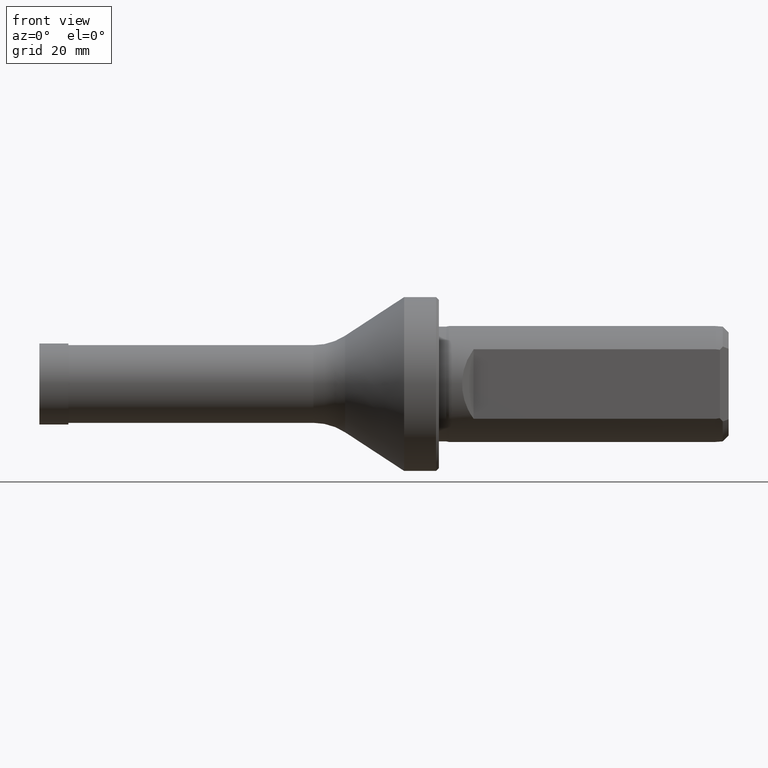
[diagram: clean part render]
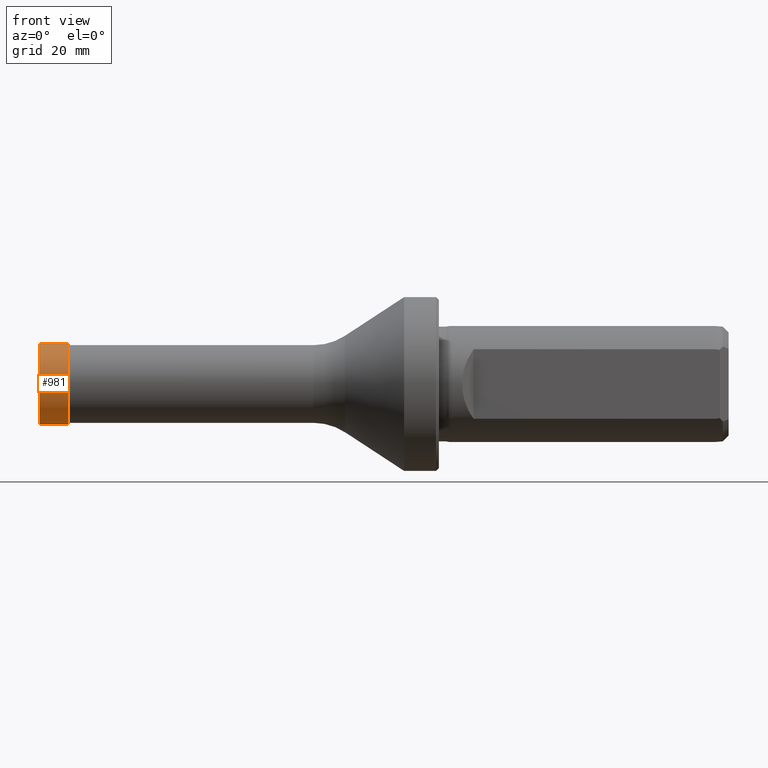
[diagram: same view with one face highlighted and labeled with its STEP entity id]
A machine part, front view. The second image highlights one B-rep face of the part: STEP entity #981.
In plain terms, the highlighted cylindrical surface (partial cylindrical patch) has radius 7 mm, axis along (-1, 0, 0).
Its self-contained STEP definition (entity closure, byte-faithful):
#28 = CARTESIAN_POINT ( 'NONE',  ( 4.500000000000000000, 8.572527594031473200E-016, -7.000000000000000000 ) ) ;
#67 = AXIS2_PLACEMENT_3D ( 'NONE', #385, #653, #226 ) ;
#72 = AXIS2_PLACEMENT_3D ( 'NONE', #327, #1011, #301 ) ;
#119 = DIRECTION ( 'NONE',  ( -1.000000000000000000, 0.0000000000000000000, 0.0000000000000000000 ) ) ;
#195 = AXIS2_PLACEMENT_3D ( 'NONE', #299, #278, #281 ) ;
#226 = DIRECTION ( 'NONE',  ( 0.0000000000000000000, 0.0000000000000000000, 1.000000000000000000 ) ) ;
#255 = VERTEX_POINT ( 'NONE', #962 ) ;
#278 = DIRECTION ( 'NONE',  ( -1.000000000000000000, 0.0000000000000000000, 0.0000000000000000000 ) ) ;
#281 = DIRECTION ( 'NONE',  ( 0.0000000000000000000, 0.0000000000000000000, 1.000000000000000000 ) ) ;
#299 = CARTESIAN_POINT ( 'NONE',  ( 4.500000000000000000, 0.0000000000000000000, 0.0000000000000000000 ) ) ;
#301 = DIRECTION ( 'NONE',  ( 0.0000000000000000000, 0.0000000000000000000, 1.000000000000000000 ) ) ;
#309 = ORIENTED_EDGE ( 'NONE', *, *, #796, .T. ) ;
#327 = CARTESIAN_POINT ( 'NONE',  ( -0.5000000000000001100, 0.0000000000000000000, 0.0000000000000000000 ) ) ;
#373 = CARTESIAN_POINT ( 'NONE',  ( -0.5000000000000001100, 8.572527594031473200E-016, -7.000000000000000000 ) ) ;
#374 = CARTESIAN_POINT ( 'NONE',  ( 4.500000000000000000, 0.0000000000000000000, 7.000000000000000000 ) ) ;
#385 = CARTESIAN_POINT ( 'NONE',  ( 4.500000000000000000, 0.0000000000000000000, 0.0000000000000000000 ) ) ;
#409 = DIRECTION ( 'NONE',  ( -1.000000000000000000, 0.0000000000000000000, 0.0000000000000000000 ) ) ;
#411 = VECTOR ( 'NONE', #409, 1000.000000000000000 ) ;
#415 = LINE ( 'NONE', #374, #411 ) ;
#485 = CYLINDRICAL_SURFACE ( 'NONE', #67, 7.000000000000000000 ) ;
#511 = FACE_OUTER_BOUND ( 'NONE', #519, .T. ) ;
#519 = EDGE_LOOP ( 'NONE', ( #1183, #309, #1031, #1161 ) ) ;
#552 = VERTEX_POINT ( 'NONE', #1006 ) ;
#641 = EDGE_CURVE ( 'NONE', #1105, #255, #896, .T. ) ;
#644 = EDGE_CURVE ( 'NONE', #691, #1105, #891, .T. ) ;
#653 = DIRECTION ( 'NONE',  ( -1.000000000000000000, 0.0000000000000000000, 0.0000000000000000000 ) ) ;
#691 = VERTEX_POINT ( 'NONE', #28 ) ;
#716 = CIRCLE ( 'NONE', #195, 7.000000000000000000 ) ;
#790 = CARTESIAN_POINT ( 'NONE',  ( 4.500000000000000000, 8.572527594031473200E-016, -7.000000000000000000 ) ) ;
#796 = EDGE_CURVE ( 'NONE', #691, #552, #716, .T. ) ;
#885 = VECTOR ( 'NONE', #119, 1000.000000000000000 ) ;
#891 = LINE ( 'NONE', #790, #885 ) ;
#896 = CIRCLE ( 'NONE', #72, 7.000000000000000000 ) ;
#962 = CARTESIAN_POINT ( 'NONE',  ( -0.5000000000000001100, 0.0000000000000000000, 7.000000000000000000 ) ) ;
#981 = ADVANCED_FACE ( 'NONE', ( #511 ), #485, .T. ) ;
#1006 = CARTESIAN_POINT ( 'NONE',  ( 4.500000000000000000, 0.0000000000000000000, 7.000000000000000000 ) ) ;
#1011 = DIRECTION ( 'NONE',  ( -1.000000000000000000, 0.0000000000000000000, 0.0000000000000000000 ) ) ;
#1031 = ORIENTED_EDGE ( 'NONE', *, *, #1092, .T. ) ;
#1092 = EDGE_CURVE ( 'NONE', #552, #255, #415, .T. ) ;
#1105 = VERTEX_POINT ( 'NONE', #373 ) ;
#1161 = ORIENTED_EDGE ( 'NONE', *, *, #641, .F. ) ;
#1183 = ORIENTED_EDGE ( 'NONE', *, *, #644, .F. ) ;